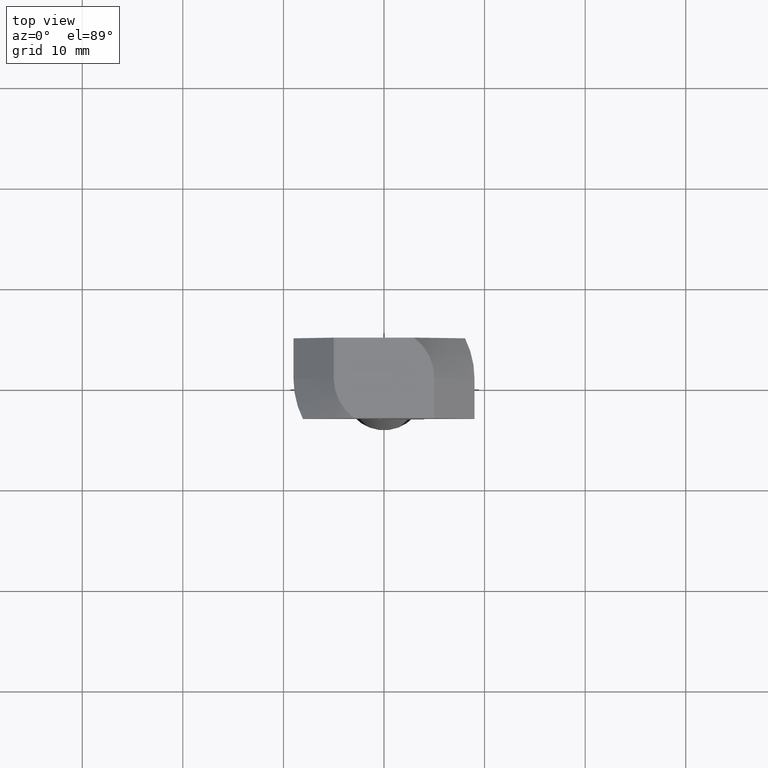
[diagram: clean part render]
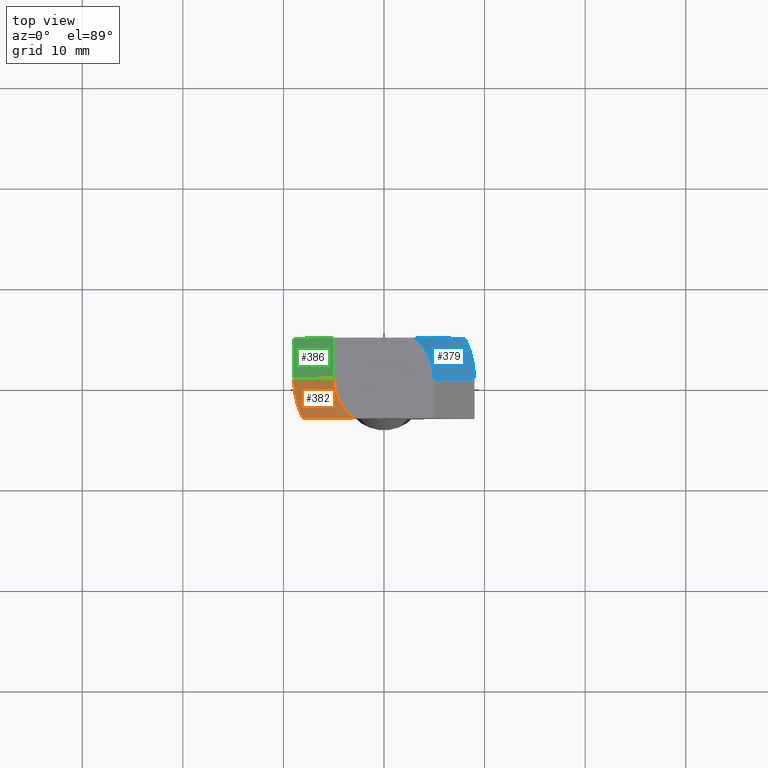
[diagram: same view with three faces highlighted in distinct colors, each labeled with its STEP entity id]
A machine part, top view with three faces highlighted in distinct colors.
Their STEP definitions:

[orange] entity #382 — the highlighted conical surface has half-angle 45 deg.
#16=(
BOUNDED_CURVE()
B_SPLINE_CURVE(2,(#629,#630,#631),.UNSPECIFIED.,.F.,.F.)
B_SPLINE_CURVE_WITH_KNOTS((3,3),(0.,0.645810133031388),.UNSPECIFIED.)
CURVE()
GEOMETRIC_REPRESENTATION_ITEM()
RATIONAL_B_SPLINE_CURVE((1.,1.07257323111155,1.))
REPRESENTATION_ITEM('')
);
#40=LINE('',#634,#74);
#74=VECTOR('',#517,5.65685424949238);
#124=FACE_OUTER_BOUND('',#152,.T.);
#152=EDGE_LOOP('',(#317,#318,#319,#320));
#173=CIRCLE('',#420,9.);
#174=CIRCLE('',#422,5.);
#202=VERTEX_POINT('',#622);
#203=VERTEX_POINT('',#624);
#204=VERTEX_POINT('',#628);
#205=VERTEX_POINT('',#632);
#246=EDGE_CURVE('',#203,#202,#173,.T.);
#248=EDGE_CURVE('',#204,#202,#16,.T.);
#249=EDGE_CURVE('',#205,#204,#174,.T.);
#250=EDGE_CURVE('',#205,#203,#40,.T.);
#317=ORIENTED_EDGE('',*,*,#248,.F.);
#318=ORIENTED_EDGE('',*,*,#249,.F.);
#319=ORIENTED_EDGE('',*,*,#250,.T.);
#320=ORIENTED_EDGE('',*,*,#246,.T.);
#366=CONICAL_SURFACE('',#421,7.,45.);
#382=ADVANCED_FACE('',(#124),#366,.T.);
#420=AXIS2_PLACEMENT_3D('',#625,#510,#511);
#421=AXIS2_PLACEMENT_3D('',#627,#513,#514);
#422=AXIS2_PLACEMENT_3D('',#633,#515,#516);
#510=DIRECTION('center_axis',(0.,0.,1.));
#511=DIRECTION('ref_axis',(-1.,-1.2335811384724E-16,0.));
#513=DIRECTION('center_axis',(0.,0.,-1.));
#514=DIRECTION('ref_axis',(-1.,0.,0.));
#515=DIRECTION('center_axis',(2.04289535270664E-17,0.,1.));
#516=DIRECTION('ref_axis',(-1.,0.,0.));
#517=DIRECTION('',(-0.707106781186547,0.,-0.707106781186547));
#622=CARTESIAN_POINT('',(-8.06225774829855,-4.,-4.));
#624=CARTESIAN_POINT('',(-9.,0.,-4.));
#625=CARTESIAN_POINT('Origin',(1.11022302462516E-15,1.11022302462516E-15,
-4.));
#627=CARTESIAN_POINT('Origin',(0.,0.,-2.));
#628=CARTESIAN_POINT('',(-3.,-4.,0.));
#629=CARTESIAN_POINT('Ctrl Pts',(-3.,-4.,2.77555756156289E-16));
#630=CARTESIAN_POINT('Ctrl Pts',(-4.80794919582092,-4.,-1.08476951749255));
#631=CARTESIAN_POINT('Ctrl Pts',(-8.06225774829855,-4.,-4.));
#632=CARTESIAN_POINT('',(-5.,0.,0.));
#633=CARTESIAN_POINT('Origin',(0.,0.,2.77555756156289E-16));
#634=CARTESIAN_POINT('',(-7.,0.,-2.));

[blue] entity #379 — the highlighted conical surface has half-angle 45 deg.
#15=(
BOUNDED_CURVE()
B_SPLINE_CURVE(2,(#610,#611,#612),.UNSPECIFIED.,.F.,.F.)
B_SPLINE_CURVE_WITH_KNOTS((3,3),(0.,0.645810133031387),.UNSPECIFIED.)
CURVE()
GEOMETRIC_REPRESENTATION_ITEM()
RATIONAL_B_SPLINE_CURVE((1.,1.07257323111151,1.))
REPRESENTATION_ITEM('')
);
#35=LINE('',#616,#69);
#69=VECTOR('',#500,5.65685424949238);
#121=FACE_OUTER_BOUND('',#149,.T.);
#149=EDGE_LOOP('',(#305,#306,#307,#308));
#171=CIRCLE('',#416,5.);
#172=CIRCLE('',#417,9.);
#198=VERTEX_POINT('',#608);
#199=VERTEX_POINT('',#609);
#200=VERTEX_POINT('',#613);
#201=VERTEX_POINT('',#615);
#239=EDGE_CURVE('',#198,#199,#15,.T.);
#240=EDGE_CURVE('',#200,#198,#171,.T.);
#241=EDGE_CURVE('',#200,#201,#35,.T.);
#242=EDGE_CURVE('',#201,#199,#172,.T.);
#305=ORIENTED_EDGE('',*,*,#239,.F.);
#306=ORIENTED_EDGE('',*,*,#240,.F.);
#307=ORIENTED_EDGE('',*,*,#241,.T.);
#308=ORIENTED_EDGE('',*,*,#242,.T.);
#365=CONICAL_SURFACE('',#415,7.,45.);
#379=ADVANCED_FACE('',(#121),#365,.T.);
#415=AXIS2_PLACEMENT_3D('',#607,#496,#497);
#416=AXIS2_PLACEMENT_3D('',#614,#498,#499);
#417=AXIS2_PLACEMENT_3D('',#617,#501,#502);
#496=DIRECTION('center_axis',(0.,0.,-1.));
#497=DIRECTION('ref_axis',(1.,0.,0.));
#498=DIRECTION('center_axis',(2.04289535270664E-17,0.,1.));
#499=DIRECTION('ref_axis',(1.,0.,0.));
#500=DIRECTION('',(0.707106781186547,0.,-0.707106781186548));
#501=DIRECTION('center_axis',(2.9781283147877E-16,2.9781283147877E-16,1.));
#502=DIRECTION('ref_axis',(1.,1.2335811384724E-16,-3.08395284618099E-16));
#607=CARTESIAN_POINT('Origin',(0.,0.,-2.));
#608=CARTESIAN_POINT('',(3.,4.,0.));
#609=CARTESIAN_POINT('',(8.06225774829855,4.,-4.));
#610=CARTESIAN_POINT('Ctrl Pts',(3.,4.,-2.77555756156289E-16));
#611=CARTESIAN_POINT('Ctrl Pts',(4.80794919582092,4.,-1.08476951749255));
#612=CARTESIAN_POINT('Ctrl Pts',(8.06225774829855,4.,-4.));
#613=CARTESIAN_POINT('',(5.,0.,0.));
#614=CARTESIAN_POINT('Origin',(0.,0.,2.77555756156289E-16));
#615=CARTESIAN_POINT('',(9.,0.,-4.));
#616=CARTESIAN_POINT('',(7.,0.,-2.));
#617=CARTESIAN_POINT('Origin',(-1.11022302462516E-15,-1.11022302462516E-15,
-4.));

[green] entity #386 — the highlighted planar face has unit normal (-0.7071, 0, 0.7071).
#40=LINE('',#634,#74);
#45=LINE('',#645,#79);
#47=LINE('',#649,#81);
#48=LINE('',#650,#82);
#74=VECTOR('',#517,5.65685424949238);
#79=VECTOR('',#528,4.);
#81=VECTOR('',#532,4.);
#82=VECTOR('',#533,5.65685424949238);
#94=PLANE('',#426);
#128=FACE_OUTER_BOUND('',#156,.T.);
#156=EDGE_LOOP('',(#333,#334,#335,#336));
#203=VERTEX_POINT('',#624);
#205=VERTEX_POINT('',#632);
#208=VERTEX_POINT('',#644);
#209=VERTEX_POINT('',#648);
#250=EDGE_CURVE('',#205,#203,#40,.T.);
#255=EDGE_CURVE('',#208,#203,#45,.T.);
#257=EDGE_CURVE('',#209,#205,#47,.T.);
#258=EDGE_CURVE('',#208,#209,#48,.T.);
#333=ORIENTED_EDGE('',*,*,#250,.F.);
#334=ORIENTED_EDGE('',*,*,#257,.F.);
#335=ORIENTED_EDGE('',*,*,#258,.F.);
#336=ORIENTED_EDGE('',*,*,#255,.T.);
#386=ADVANCED_FACE('',(#128),#94,.T.);
#426=AXIS2_PLACEMENT_3D('',#647,#530,#531);
#517=DIRECTION('',(-0.707106781186547,0.,-0.707106781186547));
#528=DIRECTION('',(0.,-1.,0.));
#530=DIRECTION('center_axis',(-0.707106781186548,0.,0.707106781186548));
#531=DIRECTION('ref_axis',(0.707106781186548,0.,0.707106781186548));
#532=DIRECTION('',(0.,-1.,0.));
#533=DIRECTION('',(0.707106781186548,0.,0.707106781186548));
#624=CARTESIAN_POINT('',(-9.,0.,-4.));
#632=CARTESIAN_POINT('',(-5.,0.,0.));
#634=CARTESIAN_POINT('',(-7.,0.,-2.));
#644=CARTESIAN_POINT('',(-9.,4.,-4.));
#645=CARTESIAN_POINT('',(-9.,0.,-4.));
#647=CARTESIAN_POINT('Origin',(-9.,0.,-4.));
#648=CARTESIAN_POINT('',(-5.,4.,0.));
#649=CARTESIAN_POINT('',(-5.,0.,4.00551059515339E-16));
#650=CARTESIAN_POINT('',(-5.,4.,4.00551059515339E-16));